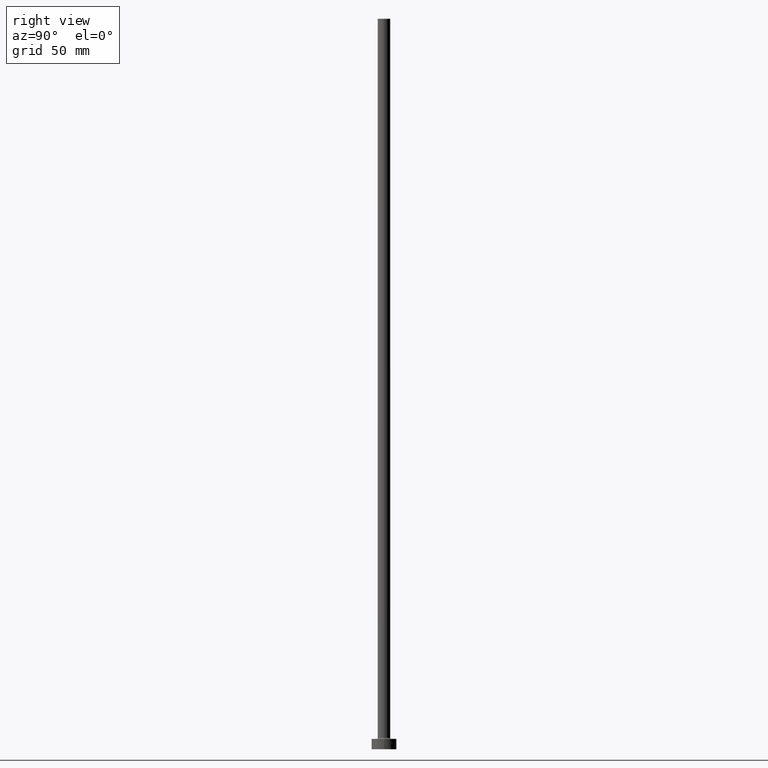
[diagram: clean part render]
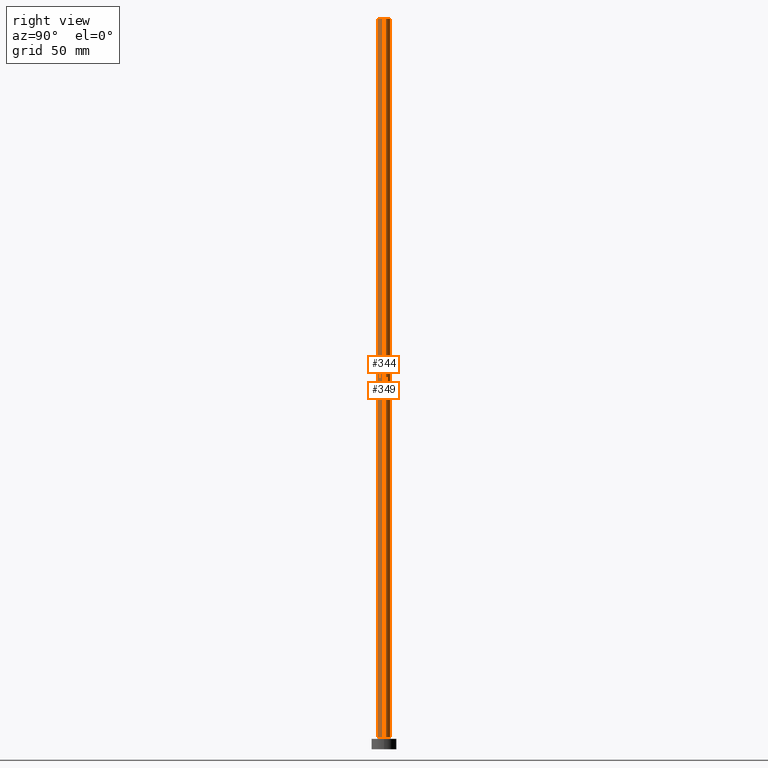
[diagram: same view with one multi-face feature highlighted, each face labeled with its STEP entity id]
A machine part, right view. The highlighted faces form ONE feature: a constant-radius fillet chain: 2 tangent blend faces with common blend radius 3 mm. The faces share edges in the B-rep.
Their STEP definitions:
[1] entity #344 (Cylinder):
#21 = CIRCLE ( 'NONE', #402, 3.000000000000000444 ) ;
#32 = LINE ( 'NONE', #183, #405 ) ;
#42 = DIRECTION ( 'NONE',  ( -0.000000000000000000, -0.000000000000000000, -1.000000000000000000 ) ) ;
#73 = CARTESIAN_POINT ( 'NONE',  ( 3.000000000000000444, 3.673940397442060361E-16, 5.500000000000005329 ) ) ;
#77 = EDGE_CURVE ( 'NONE', #311, #364, #281, .T. ) ;
#80 = DIRECTION ( 'NONE',  ( -1.000000000000000000, 0.000000000000000000, 0.000000000000000000 ) ) ;
#82 = VERTEX_POINT ( 'NONE', #154 ) ;
#88 = EDGE_CURVE ( 'NONE', #383, #364, #306, .T. ) ;
#94 = ORIENTED_EDGE ( 'NONE', *, *, #88, .T. ) ;
#104 = AXIS2_PLACEMENT_3D ( 'NONE', #107, #146, #337 ) ;
#107 = CARTESIAN_POINT ( 'NONE',  ( 0.000000000000000000, 0.000000000000000000, 5.500000000000005329 ) ) ;
#109 = CARTESIAN_POINT ( 'NONE',  ( 3.000000000000000444, 3.673940397442060361E-16, 350.0000000000000000 ) ) ;
#129 = DIRECTION ( 'NONE',  ( -0.000000000000000000, -0.000000000000000000, -1.000000000000000000 ) ) ;
#132 = EDGE_LOOP ( 'NONE', ( #346, #286, #271, #94 ) ) ;
#146 = DIRECTION ( 'NONE',  ( 0.000000000000000000, 0.000000000000000000, 1.000000000000000000 ) ) ;
#154 = CARTESIAN_POINT ( 'NONE',  ( -3.000000000000000444, 0.000000000000000000, 350.0000000000000000 ) ) ;
#179 = AXIS2_PLACEMENT_3D ( 'NONE', #399, #129, #80 ) ;
#183 = CARTESIAN_POINT ( 'NONE',  ( -3.000000000000000444, 0.000000000000000000, 350.0000000000000000 ) ) ;
#185 = FACE_OUTER_BOUND ( 'NONE', #132, .T. ) ;
#213 = CARTESIAN_POINT ( 'NONE',  ( -3.000000000000000444, 0.000000000000000000, 5.500000000000005329 ) ) ;
#248 = EDGE_CURVE ( 'NONE', #82, #311, #21, .T. ) ;
#271 = ORIENTED_EDGE ( 'NONE', *, *, #395, .T. ) ;
#281 = LINE ( 'NONE', #109, #319 ) ;
#286 = ORIENTED_EDGE ( 'NONE', *, *, #248, .F. ) ;
#288 = CYLINDRICAL_SURFACE ( 'NONE', #179, 3.000000000000000444 ) ;
#289 = DIRECTION ( 'NONE',  ( 1.000000000000000000, 0.000000000000000000, 0.000000000000000000 ) ) ;
#306 = CIRCLE ( 'NONE', #104, 3.000000000000000444 ) ;
#311 = VERTEX_POINT ( 'NONE', #432 ) ;
#319 = VECTOR ( 'NONE', #42, 1000.000000000000000 ) ;
#333 = DIRECTION ( 'NONE',  ( 0.000000000000000000, 0.000000000000000000, 1.000000000000000000 ) ) ;
#337 = DIRECTION ( 'NONE',  ( 1.000000000000000000, 0.000000000000000000, 0.000000000000000000 ) ) ;
#344 = ADVANCED_FACE ( 'NONE', ( #185 ), #288, .T. ) ;
#346 = ORIENTED_EDGE ( 'NONE', *, *, #77, .F. ) ;
#352 = DIRECTION ( 'NONE',  ( -0.000000000000000000, -0.000000000000000000, -1.000000000000000000 ) ) ;
#364 = VERTEX_POINT ( 'NONE', #73 ) ;
#383 = VERTEX_POINT ( 'NONE', #213 ) ;
#395 = EDGE_CURVE ( 'NONE', #82, #383, #32, .T. ) ;
#399 = CARTESIAN_POINT ( 'NONE',  ( 0.000000000000000000, 0.000000000000000000, 350.0000000000000000 ) ) ;
#402 = AXIS2_PLACEMENT_3D ( 'NONE', #429, #333, #289 ) ;
#405 = VECTOR ( 'NONE', #352, 1000.000000000000000 ) ;
#429 = CARTESIAN_POINT ( 'NONE',  ( 0.000000000000000000, 0.000000000000000000, 350.0000000000000000 ) ) ;
#432 = CARTESIAN_POINT ( 'NONE',  ( 3.000000000000000444, 3.673940397442060361E-16, 350.0000000000000000 ) ) ;
[2] entity #349 (Cylinder):
#4 = CARTESIAN_POINT ( 'NONE',  ( 0.000000000000000000, 0.000000000000000000, 350.0000000000000000 ) ) ;
#26 = DIRECTION ( 'NONE',  ( 0.000000000000000000, 0.000000000000000000, 1.000000000000000000 ) ) ;
#32 = LINE ( 'NONE', #183, #405 ) ;
#42 = DIRECTION ( 'NONE',  ( -0.000000000000000000, -0.000000000000000000, -1.000000000000000000 ) ) ;
#43 = DIRECTION ( 'NONE',  ( -1.000000000000000000, 0.000000000000000000, 0.000000000000000000 ) ) ;
#60 = AXIS2_PLACEMENT_3D ( 'NONE', #4, #293, #260 ) ;
#73 = CARTESIAN_POINT ( 'NONE',  ( 3.000000000000000444, 3.673940397442060361E-16, 5.500000000000005329 ) ) ;
#77 = EDGE_CURVE ( 'NONE', #311, #364, #281, .T. ) ;
#78 = EDGE_LOOP ( 'NONE', ( #442, #297, #315, #301 ) ) ;
#82 = VERTEX_POINT ( 'NONE', #154 ) ;
#97 = DIRECTION ( 'NONE',  ( -0.000000000000000000, -0.000000000000000000, -1.000000000000000000 ) ) ;
#101 = AXIS2_PLACEMENT_3D ( 'NONE', #191, #97, #43 ) ;
#109 = CARTESIAN_POINT ( 'NONE',  ( 3.000000000000000444, 3.673940397442060361E-16, 350.0000000000000000 ) ) ;
#154 = CARTESIAN_POINT ( 'NONE',  ( -3.000000000000000444, 0.000000000000000000, 350.0000000000000000 ) ) ;
#183 = CARTESIAN_POINT ( 'NONE',  ( -3.000000000000000444, 0.000000000000000000, 350.0000000000000000 ) ) ;
#191 = CARTESIAN_POINT ( 'NONE',  ( 0.000000000000000000, 0.000000000000000000, 350.0000000000000000 ) ) ;
#207 = AXIS2_PLACEMENT_3D ( 'NONE', #323, #26, #454 ) ;
#213 = CARTESIAN_POINT ( 'NONE',  ( -3.000000000000000444, 0.000000000000000000, 5.500000000000005329 ) ) ;
#220 = CIRCLE ( 'NONE', #60, 3.000000000000000444 ) ;
#260 = DIRECTION ( 'NONE',  ( 1.000000000000000000, 0.000000000000000000, 0.000000000000000000 ) ) ;
#281 = LINE ( 'NONE', #109, #319 ) ;
#293 = DIRECTION ( 'NONE',  ( 0.000000000000000000, 0.000000000000000000, 1.000000000000000000 ) ) ;
#297 = ORIENTED_EDGE ( 'NONE', *, *, #77, .T. ) ;
#301 = ORIENTED_EDGE ( 'NONE', *, *, #395, .F. ) ;
#311 = VERTEX_POINT ( 'NONE', #432 ) ;
#313 = EDGE_CURVE ( 'NONE', #311, #82, #220, .T. ) ;
#315 = ORIENTED_EDGE ( 'NONE', *, *, #406, .T. ) ;
#319 = VECTOR ( 'NONE', #42, 1000.000000000000000 ) ;
#323 = CARTESIAN_POINT ( 'NONE',  ( 0.000000000000000000, 0.000000000000000000, 5.500000000000005329 ) ) ;
#326 = FACE_OUTER_BOUND ( 'NONE', #78, .T. ) ;
#349 = ADVANCED_FACE ( 'NONE', ( #326 ), #363, .T. ) ;
#352 = DIRECTION ( 'NONE',  ( -0.000000000000000000, -0.000000000000000000, -1.000000000000000000 ) ) ;
#355 = CIRCLE ( 'NONE', #207, 3.000000000000000444 ) ;
#363 = CYLINDRICAL_SURFACE ( 'NONE', #101, 3.000000000000000444 ) ;
#364 = VERTEX_POINT ( 'NONE', #73 ) ;
#383 = VERTEX_POINT ( 'NONE', #213 ) ;
#395 = EDGE_CURVE ( 'NONE', #82, #383, #32, .T. ) ;
#405 = VECTOR ( 'NONE', #352, 1000.000000000000000 ) ;
#406 = EDGE_CURVE ( 'NONE', #364, #383, #355, .T. ) ;
#432 = CARTESIAN_POINT ( 'NONE',  ( 3.000000000000000444, 3.673940397442060361E-16, 350.0000000000000000 ) ) ;
#442 = ORIENTED_EDGE ( 'NONE', *, *, #313, .F. ) ;
#454 = DIRECTION ( 'NONE',  ( 1.000000000000000000, 0.000000000000000000, 0.000000000000000000 ) ) ;